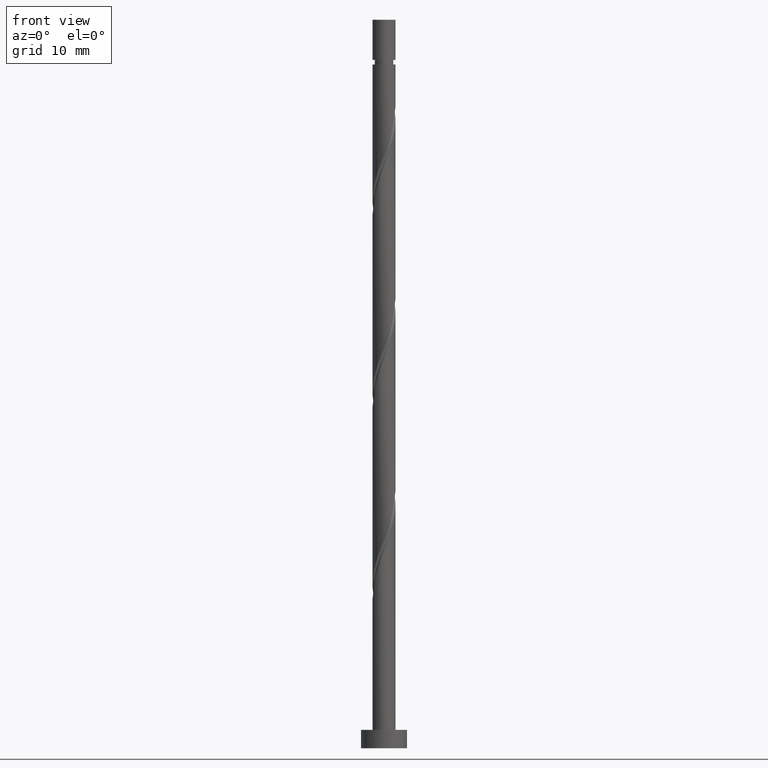
[diagram: clean part render]
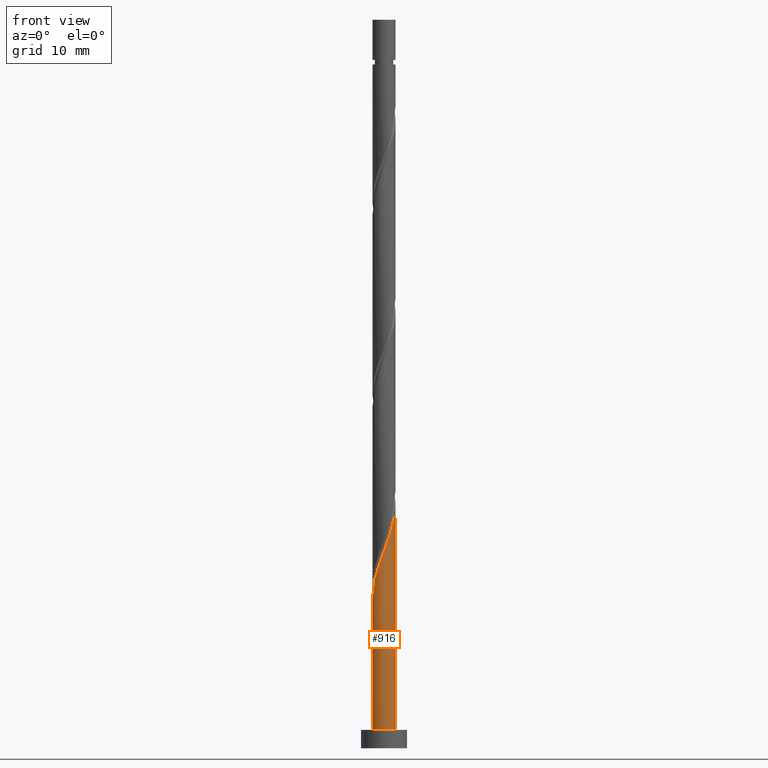
[diagram: same view with one face highlighted and labeled with its STEP entity id]
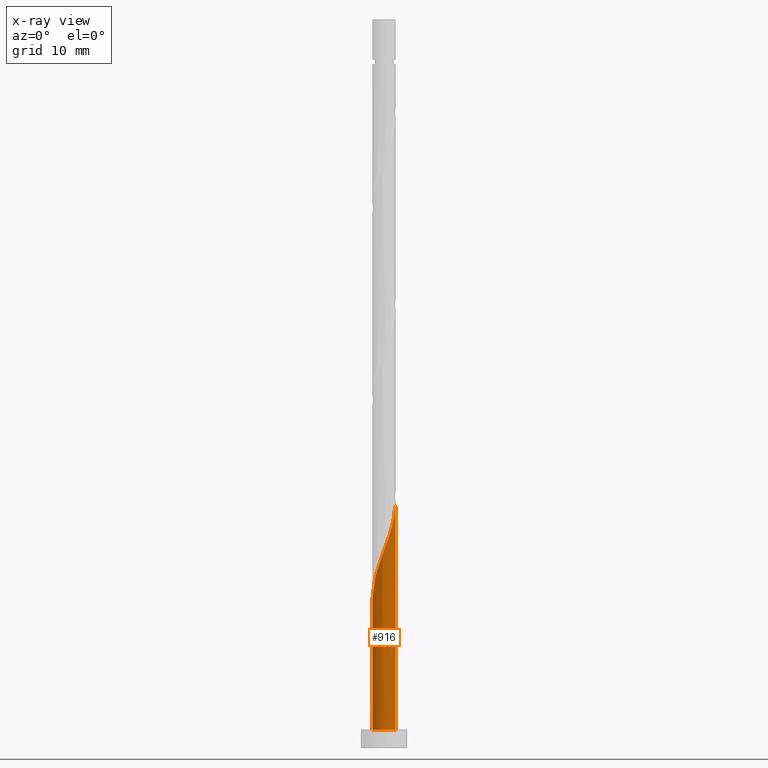
[diagram: x-ray of the same camera — body ghosted, the highlighted face saturated]
A machine part, front view. The second image highlights one B-rep face of the part: STEP entity #916.
The next image is the same camera in x-ray: the body ghosted, the highlighted face saturated — about 0% of this face is hidden behind the body in this view.
In plain terms, the highlighted cylindrical surface (edge-blend (fillet) strip) has radius 1.25 mm, axis along (-0, -0, -1).
Its self-contained STEP definition (entity closure, byte-faithful):
#18 = CARTESIAN_POINT ( 'NONE',  ( 0.9212773705104878585, -0.8448360826724234940, 24.14834057756156938 ) ) ;
#26 = CARTESIAN_POINT ( 'NONE',  ( -1.250000000000000666, -0.1256297269074069245, 16.52617604483250702 ) ) ;
#45 = DIRECTION ( 'NONE',  ( -1.000000000000000000, 0.000000000000000000, 0.000000000000000000 ) ) ;
#54 = DIRECTION ( 'NONE',  ( -0.000000000000000000, -0.000000000000000000, -1.000000000000000000 ) ) ;
#115 = CARTESIAN_POINT ( 'NONE',  ( -1.088177225647685376, -0.6151181395323271905, 17.89834057756157293 ) ) ;
#119 = VERTEX_POINT ( 'NONE', #1410 ) ;
#131 = CARTESIAN_POINT ( 'NONE',  ( -1.225000000000001421, -0.2487468592766548248, 16.85667391089491218 ) ) ;
#147 = EDGE_LOOP ( 'NONE', ( #420, #327, #1257, #1464 ) ) ;
#169 = FACE_OUTER_BOUND ( 'NONE', #147, .T. ) ;
#228 = EDGE_CURVE ( 'NONE', #119, #643, #1480, .T. ) ;
#238 = CARTESIAN_POINT ( 'NONE',  ( -0.3386729132516876906, -1.219424846461868217, 20.50250724422824788 ) ) ;
#257 = CARTESIAN_POINT ( 'NONE',  ( 0.7874684803904423713, -0.9907520833843873609, 23.62750724422824078 ) ) ;
#298 = VECTOR ( 'NONE', #1392, 1000.000000000000000 ) ;
#327 = ORIENTED_EDGE ( 'NONE', *, *, #791, .F. ) ;
#331 = DIRECTION ( 'NONE',  ( -0.000000000000000000, -0.000000000000000000, -1.000000000000000000 ) ) ;
#369 = CARTESIAN_POINT ( 'NONE',  ( -0.1419734966862950531, -1.241911239275444778, 21.02334057756157293 ) ) ;
#382 = CARTESIAN_POINT ( 'NONE',  ( -1.250000000000001554, -1.128980639575405419E-14, 16.19187146942467592 ) ) ;
#396 = DIRECTION ( 'NONE',  ( 0.000000000000000000, 0.000000000000000000, 1.000000000000000000 ) ) ;
#399 = CARTESIAN_POINT ( 'NONE',  ( 0.6151181395323271905, -1.088177225647685376, 23.10667391089490152 ) ) ;
#416 = EDGE_CURVE ( 'NONE', #575, #119, #581, .T. ) ;
#419 = CARTESIAN_POINT ( 'NONE',  ( 1.250000000000000000, 1.530808498934191571E-16, 79.00000000000000000 ) ) ;
#420 = ORIENTED_EDGE ( 'NONE', *, *, #1060, .F. ) ;
#424 = CARTESIAN_POINT ( 'NONE',  ( 0.000000000000000000, 0.000000000000000000, 79.00000000000000000 ) ) ;
#514 = CARTESIAN_POINT ( 'NONE',  ( 0.000000000000000000, 0.000000000000000000, 2.000000000000000000 ) ) ;
#525 = CARTESIAN_POINT ( 'NONE',  ( -0.9907520833843873609, -0.7874684803904423713, 18.41917391089490863 ) ) ;
#575 = VERTEX_POINT ( 'NONE', #1083 ) ;
#579 = AXIS2_PLACEMENT_3D ( 'NONE', #424, #54, #45 ) ;
#581 = LINE ( 'NONE', #967, #1405 ) ;
#619 = CARTESIAN_POINT ( 'NONE',  ( -0.8448360826724234940, -0.9212773705104878585, 18.94000724422824788 ) ) ;
#639 = CARTESIAN_POINT ( 'NONE',  ( -0.6989200819604591830, -1.055086260630533124, 19.46084057756157648 ) ) ;
#643 = VERTEX_POINT ( 'NONE', #1068 ) ;
#647 = CARTESIAN_POINT ( 'NONE',  ( 1.250000000000001998, 6.671930738526630872E-16, 26.60853813609132246 ) ) ;
#663 = CYLINDRICAL_SURFACE ( 'NONE', #579, 1.250000000000000000 ) ;
#719 =( BOUNDED_CURVE ( )  B_SPLINE_CURVE ( 2, ( #382, #26, #131, #1458, #115, #525, #619, #639, #1475, #238, #369, #1344, #1006, #999, #399, #257, #18, #883, #861, #1360, #753, #1227, #1486 ),
 .UNSPECIFIED., .F., .T. ) 
 B_SPLINE_CURVE_WITH_KNOTS ( ( 3, 2, 2, 2, 2, 2, 2, 2, 2, 2, 2, 3 ),
 ( 0.05453220231385557532, 0.06250000000000000000, 0.07499999999999995559, 0.08750000000000002220, 0.09999999999999997780, 0.1125000000000000444, 0.1250000000000000000, 0.1374999999999999556, 0.1500000000000000222, 0.1624999999999999778, 0.1750000000000000444, 0.1795322023138552769 ),
 .UNSPECIFIED. ) 
 CURVE ( )  GEOMETRIC_REPRESENTATION_ITEM ( )  RATIONAL_B_SPLINE_CURVE ( ( 0.9039174447099285192, 0.9019565955404582613, 0.9090909090909061741, 0.8978984914501224601, 0.9090909090909061741, 0.8978984914501224601, 0.9090909090909061741, 0.8978984914501224601, 0.9090909090909061741, 0.8978984914501224601, 0.9090909090909061741, 0.8978984914501224601, 0.9090909090909061741, 0.8978984914501224601, 0.9090909090909061741, 0.8978984914501224601, 0.9090909090909061741, 0.8978984914501224601, 0.9090909090909061741, 0.8978984914501224601, 0.9090909090909061741, 0.9050328050005705949, 0.9039174447099285192 ) ) 
 REPRESENTATION_ITEM ( '' )  );
#753 = CARTESIAN_POINT ( 'NONE',  ( 1.241911239275444778, -0.1419734966862950809, 26.23167391089491574 ) ) ;
#773 = VERTEX_POINT ( 'NONE', #647 ) ;
#791 = EDGE_CURVE ( 'NONE', #575, #773, #719, .T. ) ;
#861 = CARTESIAN_POINT ( 'NONE',  ( 1.137255553546200559, -0.5187964976060734923, 25.19000724422823723 ) ) ;
#883 = CARTESIAN_POINT ( 'NONE',  ( 1.055086260630533346, -0.6989200819604595161, 24.66917391089491218 ) ) ;
#916 = ADVANCED_FACE ( 'NONE', ( #169 ), #663, .T. ) ;
#967 = CARTESIAN_POINT ( 'NONE',  ( -1.250000000000000000, 0.000000000000000000, 79.00000000000000000 ) ) ;
#999 = CARTESIAN_POINT ( 'NONE',  ( 0.4427677986742119542, -1.185602367910982613, 22.58584057756157648 ) ) ;
#1006 = CARTESIAN_POINT ( 'NONE',  ( 0.2487468592766547137, -1.225000000000001421, 22.06500724422824433 ) ) ;
#1025 = LINE ( 'NONE', #419, #298 ) ;
#1060 = EDGE_CURVE ( 'NONE', #773, #643, #1025, .T. ) ;
#1068 = CARTESIAN_POINT ( 'NONE',  ( 1.250000000000000000, 1.530808498934191571E-16, 2.000000000000000000 ) ) ;
#1083 = CARTESIAN_POINT ( 'NONE',  ( -1.250000000000001776, -1.128980639575405419E-14, 16.19187146942467592 ) ) ;
#1227 = CARTESIAN_POINT ( 'NONE',  ( 1.250000000000001776, -0.07121717180804074121, 26.41902704688403603 ) ) ;
#1233 = AXIS2_PLACEMENT_3D ( 'NONE', #514, #396, #1243 ) ;
#1243 = DIRECTION ( 'NONE',  ( 1.000000000000000000, 0.000000000000000000, 0.000000000000000000 ) ) ;
#1257 = ORIENTED_EDGE ( 'NONE', *, *, #416, .T. ) ;
#1344 = CARTESIAN_POINT ( 'NONE',  ( 0.05472591987909743855, -1.264397632089020895, 21.54417391089491218 ) ) ;
#1360 = CARTESIAN_POINT ( 'NONE',  ( 1.219424846461868217, -0.3386729132516877461, 25.71084057756156938 ) ) ;
#1392 = DIRECTION ( 'NONE',  ( -0.000000000000000000, -0.000000000000000000, -1.000000000000000000 ) ) ;
#1405 = VECTOR ( 'NONE', #331, 1000.000000000000000 ) ;
#1410 = CARTESIAN_POINT ( 'NONE',  ( -1.250000000000000000, 0.000000000000000000, 2.000000000000000000 ) ) ;
#1458 = CARTESIAN_POINT ( 'NONE',  ( -1.185602367910982613, -0.4427677986742120653, 17.37750724422824078 ) ) ;
#1464 = ORIENTED_EDGE ( 'NONE', *, *, #228, .T. ) ;
#1475 = CARTESIAN_POINT ( 'NONE',  ( -0.5187964976060734923, -1.137255553546200559, 19.98167391089490152 ) ) ;
#1480 = CIRCLE ( 'NONE', #1233, 1.250000000000000000 ) ;
#1486 = CARTESIAN_POINT ( 'NONE',  ( 1.250000000000001998, 6.671930738526630872E-16, 26.60853813609132601 ) ) ;